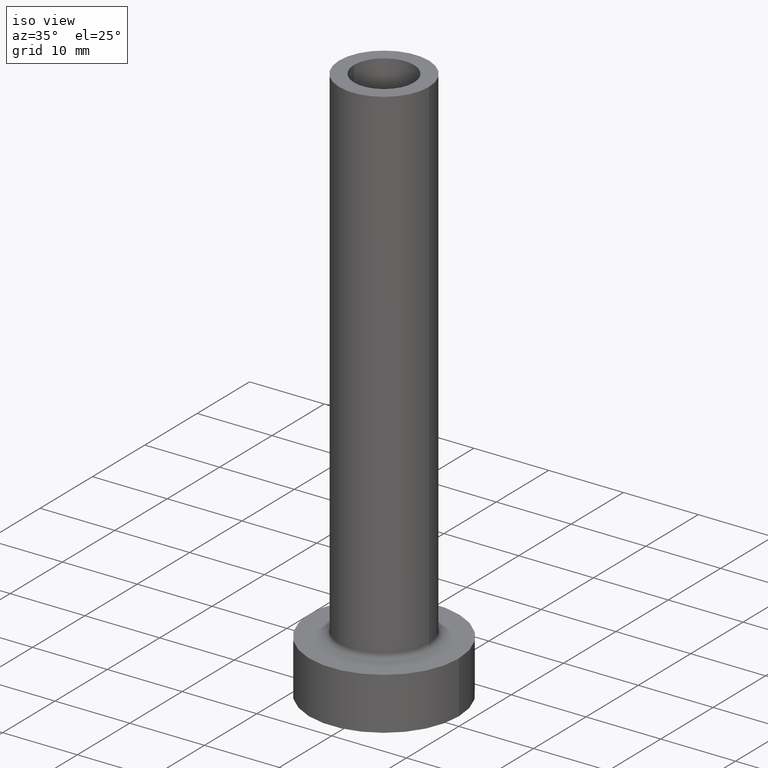
[diagram: clean part render]
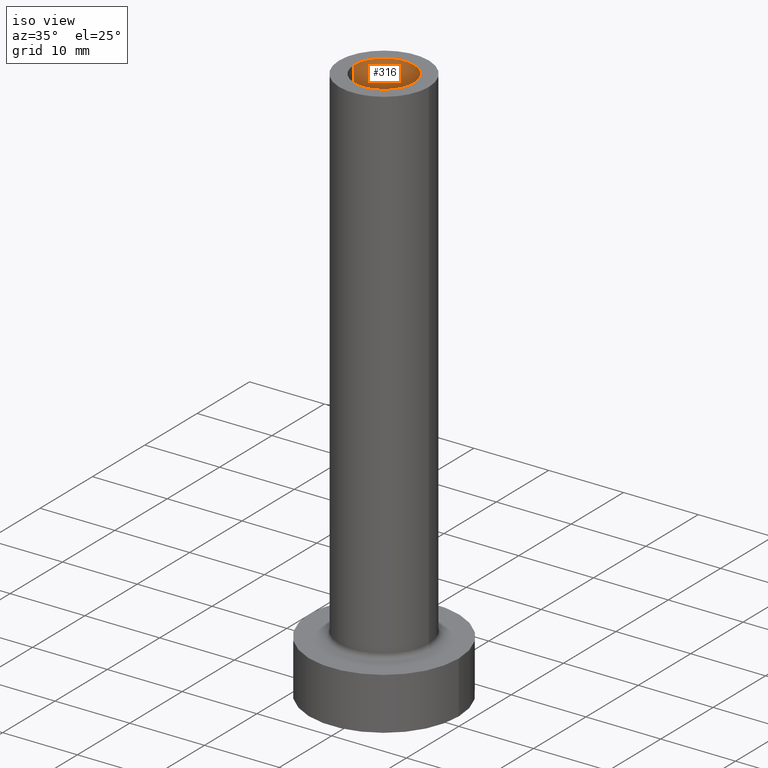
[diagram: same view with one face highlighted and labeled with its STEP entity id]
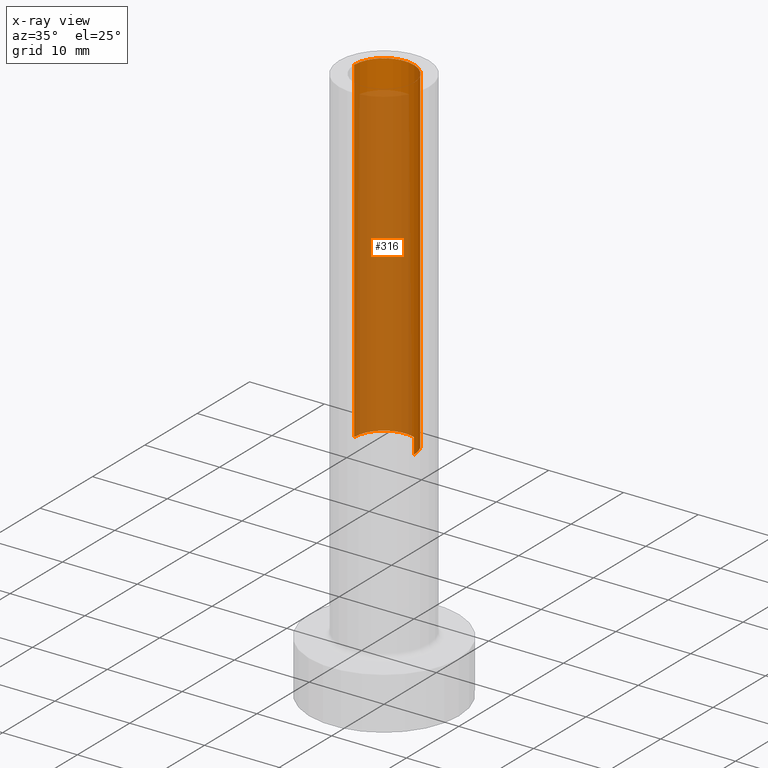
[diagram: x-ray of the same camera — body ghosted, the highlighted face saturated]
A machine part, iso view. The second image highlights one B-rep face of the part: STEP entity #316.
The next image is the same camera in x-ray: the body ghosted, the highlighted face saturated — about 73% of this face is hidden behind the body in this view.
In plain terms, the highlighted cylindrical surface (edge-blend (fillet) strip) has radius 4 mm, axis along (0, 0, -1).
Its self-contained STEP definition (entity closure, byte-faithful):
#1 = AXIS2_PLACEMENT_3D ( 'NONE', #377, #356, #352 ) ;
#23 = CARTESIAN_POINT ( 'NONE',  ( 4.000000000000000000, 4.898587196589411843E-16, 75.00000000000001421 ) ) ;
#35 = CARTESIAN_POINT ( 'NONE',  ( -4.000000000000000000, 0.000000000000000000, 75.00000000000001421 ) ) ;
#42 = AXIS2_PLACEMENT_3D ( 'NONE', #429, #321, #220 ) ;
#53 = VERTEX_POINT ( 'NONE', #389 ) ;
#61 = VERTEX_POINT ( 'NONE', #92 ) ;
#92 = CARTESIAN_POINT ( 'NONE',  ( -4.000000000000000000, 0.000000000000000000, 30.00000000000001421 ) ) ;
#95 = CIRCLE ( 'NONE', #1, 4.000000000000000000 ) ;
#110 = DIRECTION ( 'NONE',  ( 0.000000000000000000, 0.000000000000000000, -1.000000000000000000 ) ) ;
#127 = EDGE_CURVE ( 'NONE', #409, #61, #336, .T. ) ;
#160 = DIRECTION ( 'NONE',  ( 0.000000000000000000, 0.000000000000000000, -1.000000000000000000 ) ) ;
#192 = CIRCLE ( 'NONE', #42, 4.000000000000000000 ) ;
#196 = VERTEX_POINT ( 'NONE', #23 ) ;
#197 = DIRECTION ( 'NONE',  ( 0.000000000000000000, 0.000000000000000000, -1.000000000000000000 ) ) ;
#205 = ORIENTED_EDGE ( 'NONE', *, *, #207, .F. ) ;
#207 = EDGE_CURVE ( 'NONE', #196, #53, #243, .T. ) ;
#218 = EDGE_LOOP ( 'NONE', ( #205, #311, #372, #460 ) ) ;
#220 = DIRECTION ( 'NONE',  ( 1.000000000000000000, 0.000000000000000000, 0.000000000000000000 ) ) ;
#243 = LINE ( 'NONE', #376, #247 ) ;
#246 = FACE_OUTER_BOUND ( 'NONE', #218, .T. ) ;
#247 = VECTOR ( 'NONE', #160, 1000.000000000000000 ) ;
#283 = DIRECTION ( 'NONE',  ( -1.000000000000000000, 0.000000000000000000, 0.000000000000000000 ) ) ;
#311 = ORIENTED_EDGE ( 'NONE', *, *, #423, .T. ) ;
#316 = ADVANCED_FACE ( 'NONE', ( #246 ), #380, .F. ) ;
#321 = DIRECTION ( 'NONE',  ( 0.000000000000000000, 0.000000000000000000, 1.000000000000000000 ) ) ;
#336 = LINE ( 'NONE', #375, #378 ) ;
#352 = DIRECTION ( 'NONE',  ( 1.000000000000000000, 0.000000000000000000, 0.000000000000000000 ) ) ;
#356 = DIRECTION ( 'NONE',  ( 0.000000000000000000, 0.000000000000000000, 1.000000000000000000 ) ) ;
#360 = AXIS2_PLACEMENT_3D ( 'NONE', #451, #110, #283 ) ;
#372 = ORIENTED_EDGE ( 'NONE', *, *, #127, .T. ) ;
#375 = CARTESIAN_POINT ( 'NONE',  ( -4.000000000000000000, 0.000000000000000000, 75.00000000000001421 ) ) ;
#376 = CARTESIAN_POINT ( 'NONE',  ( 4.000000000000000000, 4.898587196589411843E-16, 75.00000000000001421 ) ) ;
#377 = CARTESIAN_POINT ( 'NONE',  ( 0.000000000000000000, 0.000000000000000000, 30.00000000000001421 ) ) ;
#378 = VECTOR ( 'NONE', #197, 1000.000000000000000 ) ;
#380 = CYLINDRICAL_SURFACE ( 'NONE', #360, 4.000000000000000000 ) ;
#389 = CARTESIAN_POINT ( 'NONE',  ( 4.000000000000000000, 4.898587196589411843E-16, 30.00000000000001421 ) ) ;
#392 = EDGE_CURVE ( 'NONE', #53, #61, #95, .T. ) ;
#409 = VERTEX_POINT ( 'NONE', #35 ) ;
#423 = EDGE_CURVE ( 'NONE', #196, #409, #192, .T. ) ;
#429 = CARTESIAN_POINT ( 'NONE',  ( 0.000000000000000000, 0.000000000000000000, 75.00000000000001421 ) ) ;
#451 = CARTESIAN_POINT ( 'NONE',  ( 0.000000000000000000, 0.000000000000000000, 75.00000000000001421 ) ) ;
#460 = ORIENTED_EDGE ( 'NONE', *, *, #392, .F. ) ;